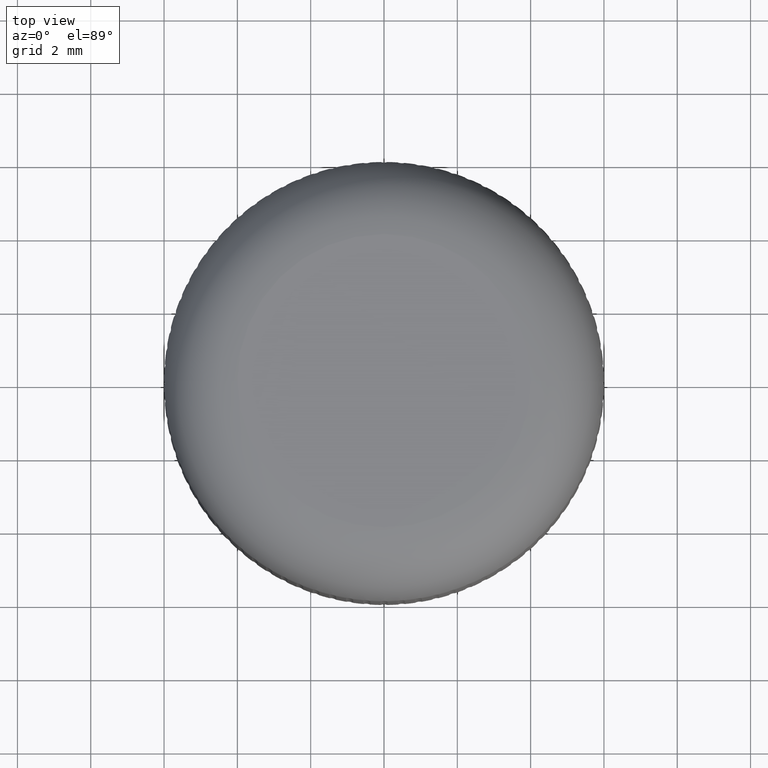
[diagram: clean part render]
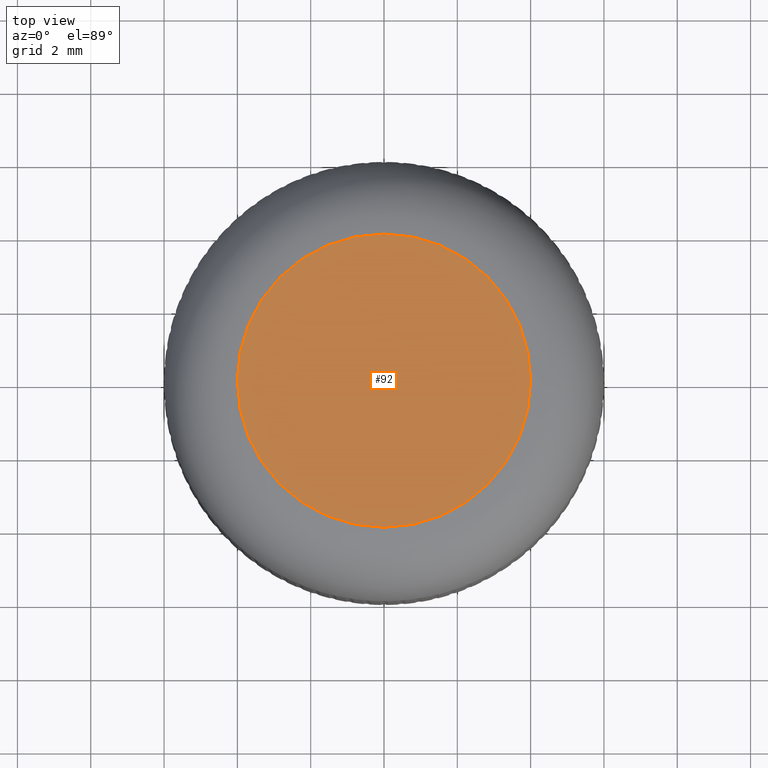
[diagram: same view with one face highlighted and labeled with its STEP entity id]
A machine part, top view. The second image highlights one B-rep face of the part: STEP entity #92.
In plain terms, the highlighted planar face has unit normal (0, 0, 1).
Its self-contained STEP definition (entity closure, byte-faithful):
#92 = ADVANCED_FACE ( 'NONE', ( #4141 ), #4748, .T. ) ;
#109 = DIRECTION ( 'NONE',  ( 0.0000000000000000000, 0.0000000000000000000, 1.000000000000000000 ) ) ;
#138 = CARTESIAN_POINT ( 'NONE',  ( 0.0000000000000000000, 0.0000000000000000000, 8.000000000000000000 ) ) ;
#453 = EDGE_LOOP ( 'NONE', ( #7336, #3628 ) ) ;
#855 = CIRCLE ( 'NONE', #6243, 4.000000000000000900 ) ;
#1209 = DIRECTION ( 'NONE',  ( 1.000000000000000000, 0.0000000000000000000, 0.0000000000000000000 ) ) ;
#1437 = CIRCLE ( 'NONE', #7874, 4.000000000000000900 ) ;
#1670 = DIRECTION ( 'NONE',  ( 1.000000000000000000, 0.0000000000000000000, -0.0000000000000000000 ) ) ;
#1697 = DIRECTION ( 'NONE',  ( 0.0000000000000000000, 0.0000000000000000000, 1.000000000000000000 ) ) ;
#2634 = CARTESIAN_POINT ( 'NONE',  ( 4.000000000000000900, 0.0000000000000000000, 8.000000000000000000 ) ) ;
#2774 = EDGE_CURVE ( 'NONE', #5500, #3418, #855, .T. ) ;
#3169 = EDGE_CURVE ( 'NONE', #3418, #5500, #1437, .T. ) ;
#3418 = VERTEX_POINT ( 'NONE', #4058 ) ;
#3628 = ORIENTED_EDGE ( 'NONE', *, *, #3169, .T. ) ;
#4058 = CARTESIAN_POINT ( 'NONE',  ( -4.000000000000000900, 6.123233995736767300E-016, 8.000000000000000000 ) ) ;
#4141 = FACE_OUTER_BOUND ( 'NONE', #453, .T. ) ;
#4425 = DIRECTION ( 'NONE',  ( 1.000000000000000000, 0.0000000000000000000, 0.0000000000000000000 ) ) ;
#4748 = PLANE ( 'NONE',  #6441 ) ;
#4900 = DIRECTION ( 'NONE',  ( 0.0000000000000000000, 0.0000000000000000000, 1.000000000000000000 ) ) ;
#5379 = CARTESIAN_POINT ( 'NONE',  ( 0.0000000000000000000, 0.0000000000000000000, 8.000000000000000000 ) ) ;
#5500 = VERTEX_POINT ( 'NONE', #2634 ) ;
#6243 = AXIS2_PLACEMENT_3D ( 'NONE', #6728, #4900, #1209 ) ;
#6441 = AXIS2_PLACEMENT_3D ( 'NONE', #5379, #1697, #1670 ) ;
#6728 = CARTESIAN_POINT ( 'NONE',  ( 0.0000000000000000000, 0.0000000000000000000, 8.000000000000000000 ) ) ;
#7336 = ORIENTED_EDGE ( 'NONE', *, *, #2774, .T. ) ;
#7874 = AXIS2_PLACEMENT_3D ( 'NONE', #138, #109, #4425 ) ;